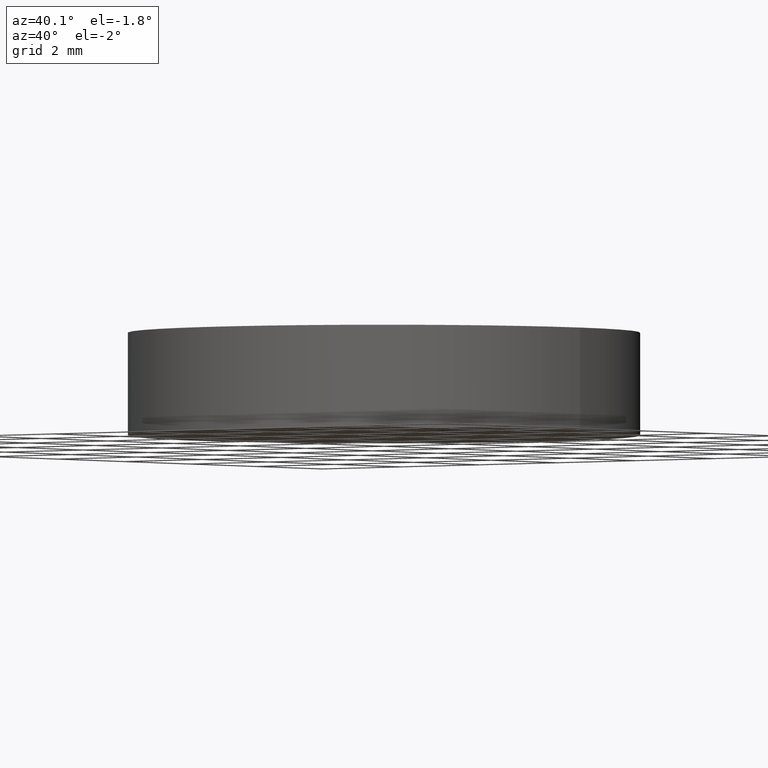
[diagram: clean part render]
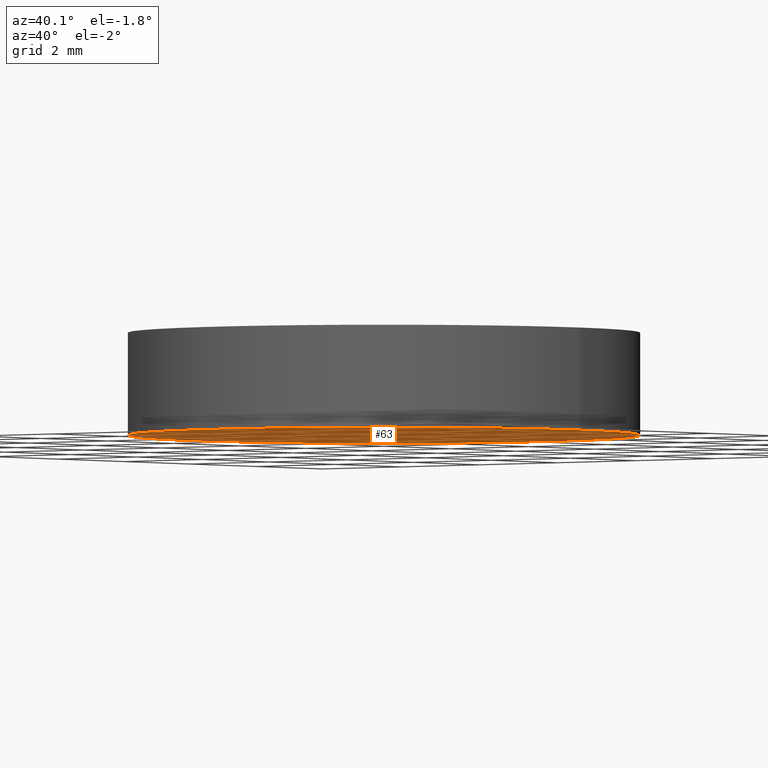
[diagram: same view with one face highlighted and labeled with its STEP entity id]
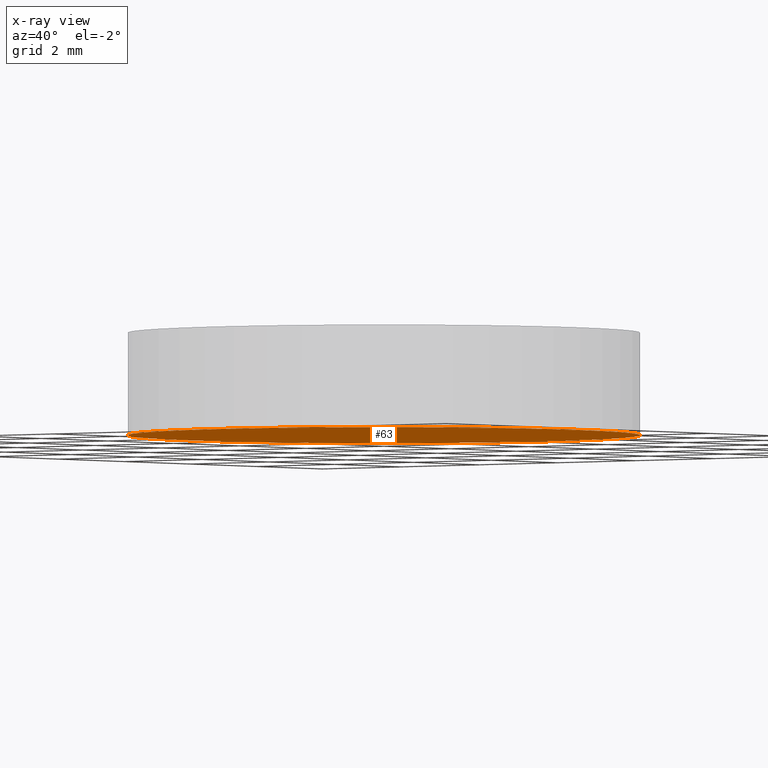
[diagram: x-ray of the same camera — body ghosted, the highlighted face saturated]
A machine part, auxiliary view. The second image highlights one B-rep face of the part: STEP entity #63.
The next image is the same camera in x-ray: the body ghosted, the highlighted face saturated — about 0% of this face is hidden behind the body in this view.
In plain terms, the highlighted planar face has unit normal (0, 0, 1).
Its self-contained STEP definition (entity closure, byte-faithful):
#4 = AXIS2_PLACEMENT_3D ( 'NONE', #128, #68, #135 ) ;
#9 = CIRCLE ( 'NONE', #103, 5.000000000000000000 ) ;
#23 = DIRECTION ( 'NONE',  ( 1.000000000000000000, 0.0000000000000000000, 0.0000000000000000000 ) ) ;
#25 = EDGE_LOOP ( 'NONE', ( #100, #96 ) ) ;
#37 = CARTESIAN_POINT ( 'NONE',  ( 0.0000000000000000000, 0.0000000000000000000, 0.0000000000000000000 ) ) ;
#42 = CARTESIAN_POINT ( 'NONE',  ( -5.000000000000000000, 0.0000000000000000000, 0.0000000000000000000 ) ) ;
#53 = DIRECTION ( 'NONE',  ( 1.000000000000000000, 0.0000000000000000000, 0.0000000000000000000 ) ) ;
#56 = DIRECTION ( 'NONE',  ( 0.0000000000000000000, 0.0000000000000000000, 1.000000000000000000 ) ) ;
#63 = ADVANCED_FACE ( 'NONE', ( #138 ), #101, .F. ) ;
#68 = DIRECTION ( 'NONE',  ( 0.0000000000000000000, 0.0000000000000000000, 1.000000000000000000 ) ) ;
#75 = CARTESIAN_POINT ( 'NONE',  ( 5.000000000000000000, 6.123233995736766300E-016, 0.0000000000000000000 ) ) ;
#77 = VERTEX_POINT ( 'NONE', #42 ) ;
#96 = ORIENTED_EDGE ( 'NONE', *, *, #139, .F. ) ;
#100 = ORIENTED_EDGE ( 'NONE', *, *, #126, .F. ) ;
#101 = PLANE ( 'NONE',  #4 ) ;
#103 = AXIS2_PLACEMENT_3D ( 'NONE', #37, #104, #23 ) ;
#104 = DIRECTION ( 'NONE',  ( 0.0000000000000000000, 0.0000000000000000000, 1.000000000000000000 ) ) ;
#110 = CIRCLE ( 'NONE', #111, 5.000000000000000000 ) ;
#111 = AXIS2_PLACEMENT_3D ( 'NONE', #123, #56, #53 ) ;
#123 = CARTESIAN_POINT ( 'NONE',  ( 0.0000000000000000000, 0.0000000000000000000, 0.0000000000000000000 ) ) ;
#126 = EDGE_CURVE ( 'NONE', #77, #130, #110, .T. ) ;
#128 = CARTESIAN_POINT ( 'NONE',  ( 0.0000000000000000000, 0.0000000000000000000, 0.0000000000000000000 ) ) ;
#130 = VERTEX_POINT ( 'NONE', #75 ) ;
#135 = DIRECTION ( 'NONE',  ( 1.000000000000000000, 0.0000000000000000000, -0.0000000000000000000 ) ) ;
#138 = FACE_OUTER_BOUND ( 'NONE', #25, .T. ) ;
#139 = EDGE_CURVE ( 'NONE', #130, #77, #9, .T. ) ;